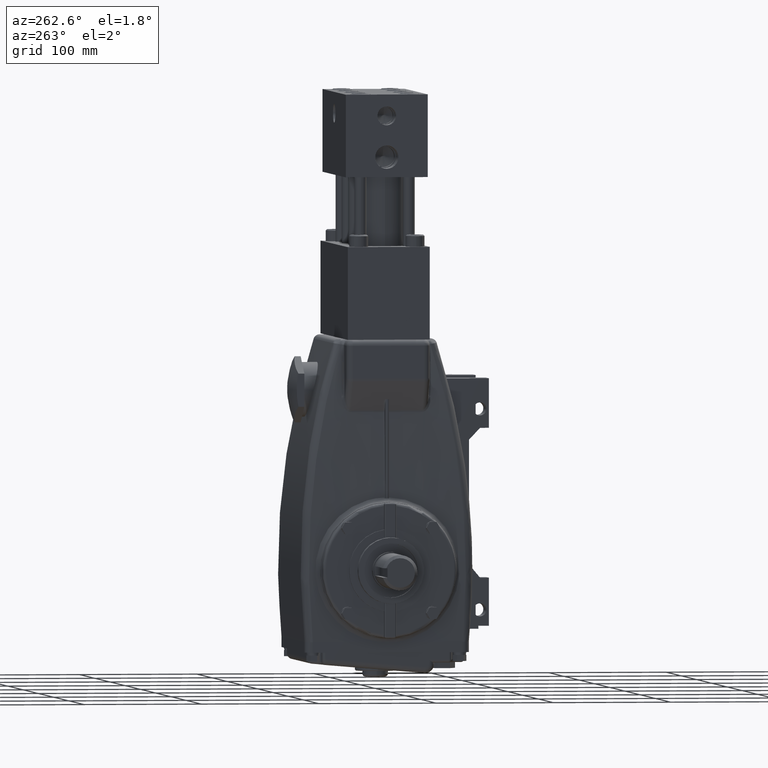
[diagram: clean part render]
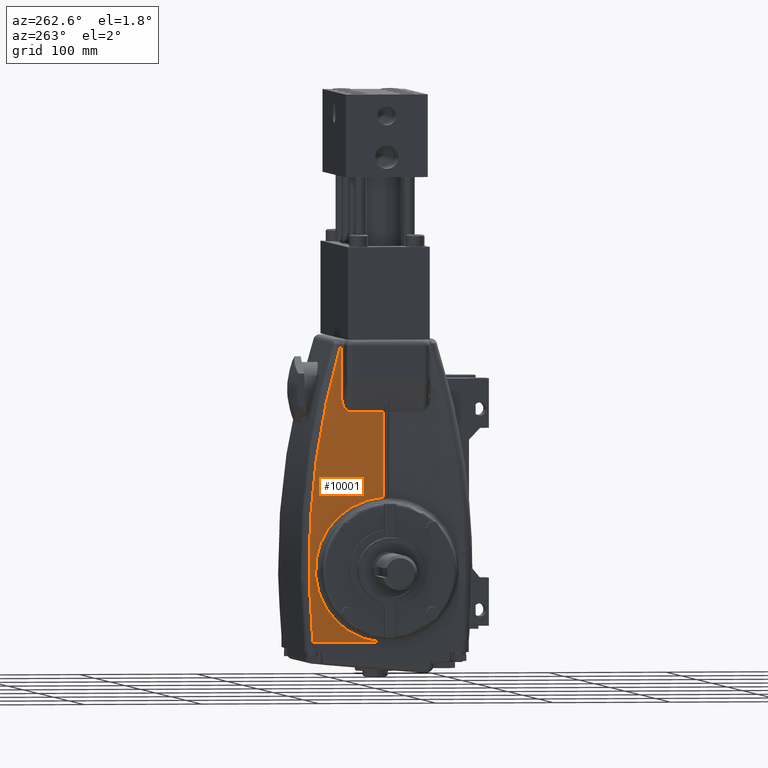
[diagram: same view with one face highlighted and labeled with its STEP entity id]
A machine part, auxiliary view. The second image highlights one B-rep face of the part: STEP entity #10001.
In plain terms, the highlighted cylindrical surface (partial cylindrical patch) has radius 2545.07 mm, axis along (0, 1, 0).
Its self-contained STEP definition (entity closure, byte-faithful):
#10001 = ADVANCED_FACE ( 'NONE', ( #15731 ), #15775, .T. ) ;
#10002 = EDGE_LOOP ( 'NONE', ( #10003, #10354, #10357, #10360, #10363, #10366, #10245, #10248, #10251 ) ) ;
#10003 = ORIENTED_EDGE ( 'NONE', *, *, #10352, .T. ) ;
#10005 = VERTEX_POINT ( 'NONE', #15787 ) ;
#10244 = VERTEX_POINT ( 'NONE', #15877 ) ;
#10245 = ORIENTED_EDGE ( 'NONE', *, *, #10246, .T. ) ;
#10246 = EDGE_CURVE ( 'NONE', #10244, #10247, #15844, .T. ) ;
#10247 = VERTEX_POINT ( 'NONE', #15907 ) ;
#10248 = ORIENTED_EDGE ( 'NONE', *, *, #10249, .T. ) ;
#10249 = EDGE_CURVE ( 'NONE', #10247, #10250, #15906, .T. ) ;
#10250 = VERTEX_POINT ( 'NONE', #15902 ) ;
#10251 = ORIENTED_EDGE ( 'NONE', *, *, #10252, .T. ) ;
#10252 = EDGE_CURVE ( 'NONE', #10250, #10005, #16021, .T. ) ;
#10352 = EDGE_CURVE ( 'NONE', #10005, #10353, #22519, .T. ) ;
#10353 = VERTEX_POINT ( 'NONE', #22514 ) ;
#10354 = ORIENTED_EDGE ( 'NONE', *, *, #10355, .T. ) ;
#10355 = EDGE_CURVE ( 'NONE', #10353, #10356, #22513, .T. ) ;
#10356 = VERTEX_POINT ( 'NONE', #22362 ) ;
#10357 = ORIENTED_EDGE ( 'NONE', *, *, #10358, .T. ) ;
#10358 = EDGE_CURVE ( 'NONE', #10356, #10359, #22359, .T. ) ;
#10359 = VERTEX_POINT ( 'NONE', #22361 ) ;
#10360 = ORIENTED_EDGE ( 'NONE', *, *, #10361, .F. ) ;
#10361 = EDGE_CURVE ( 'NONE', #10362, #10359, #22360, .T. ) ;
#10362 = VERTEX_POINT ( 'NONE', #22451 ) ;
#10363 = ORIENTED_EDGE ( 'NONE', *, *, #10364, .T. ) ;
#10364 = EDGE_CURVE ( 'NONE', #10362, #10365, #22449, .T. ) ;
#10365 = VERTEX_POINT ( 'NONE', #22450 ) ;
#10366 = ORIENTED_EDGE ( 'NONE', *, *, #10367, .T. ) ;
#10367 = EDGE_CURVE ( 'NONE', #10365, #10244, #22401, .T. ) ;
#15731 = FACE_OUTER_BOUND ( 'NONE', #10002, .T. ) ;
#15775 = CYLINDRICAL_SURFACE ( 'NONE', #15776, 100.1997440886699200 ) ;
#15776 = AXIS2_PLACEMENT_3D ( 'NONE', #15786, #15785, #15784 ) ;
#15784 = DIRECTION ( 'NONE',  ( 0.0000000000000000000, 0.0000000000000000000, 1.000000000000000000 ) ) ;
#15785 = DIRECTION ( 'NONE',  ( -0.0000000000000000000, 1.000000000000000000, -0.0000000000000000000 ) ) ;
#15786 = CARTESIAN_POINT ( 'NONE',  ( 97.00624408866993100, -2.883875515456243200, -2.399999999999999000 ) ) ;
#15787 = CARTESIAN_POINT ( 'NONE',  ( -2.859311881965418400, 1.499999999999999800, 5.776762569063620000 ) ) ;
#15843 = AXIS2_PLACEMENT_3D ( 'NONE', #15910, #15909, #15908 ) ;
#15844 = CIRCLE ( 'NONE', #15843, 100.1997440886699200 ) ;
#15877 = CARTESIAN_POINT ( 'NONE',  ( -3.050071571255026400, 0.1124999999999993100, 2.959329435330548400 ) ) ;
#15902 = CARTESIAN_POINT ( 'NONE',  ( -2.901068149329205400, 1.199999999999999700, 5.249684752582270500 ) ) ;
#15903 = DIRECTION ( 'NONE',  ( -0.0000000000000000000, 1.000000000000000000, -0.0000000000000000000 ) ) ;
#15904 = VECTOR ( 'NONE', #15903, 39.37007874015748100 ) ;
#15905 = CARTESIAN_POINT ( 'NONE',  ( -2.901068149329225000, -2.883875515456243200, 5.249684752582270500 ) ) ;
#15906 = LINE ( 'NONE', #15905, #15904 ) ;
#15907 = CARTESIAN_POINT ( 'NONE',  ( -2.901068149329225000, 0.1124999999999988600, 5.249684752582270500 ) ) ;
#15908 = DIRECTION ( 'NONE',  ( 0.0000000000000000000, 1.216656966802099500E-016, -1.000000000000000000 ) ) ;
#15909 = DIRECTION ( 'NONE',  ( -0.0000000000000000000, 1.000000000000000000, 1.215879315361935300E-016 ) ) ;
#15910 = CARTESIAN_POINT ( 'NONE',  ( 97.00624408866993100, 0.1124999999999999600, -2.399999999999999000 ) ) ;
#15966 = CARTESIAN_POINT ( 'NONE',  ( -2.887076312102566900, 1.426033687245816400, 5.430287583542172700 ) ) ;
#15967 = CARTESIAN_POINT ( 'NONE',  ( -2.888980498420548500, 1.413163146665634700, 5.405957278074187600 ) ) ;
#15968 = CARTESIAN_POINT ( 'NONE',  ( -2.889917349448204700, 1.406208030663546700, 5.393958071949475300 ) ) ;
#15987 = CARTESIAN_POINT ( 'NONE',  ( -2.876920942768291100, 1.473542060825029800, 5.558816399201777600 ) ) ;
#15988 = CARTESIAN_POINT ( 'NONE',  ( -2.881109249955064100, 1.457791016554444500, 5.506077293981412000 ) ) ;
#15989 = CARTESIAN_POINT ( 'NONE',  ( -2.883146714662563800, 1.448491403738287900, 5.480288935827699600 ) ) ;
#15990 = CARTESIAN_POINT ( 'NONE',  ( -2.886106087622788000, 1.431971710648627800, 5.442655801855199400 ) ) ;
#16002 = CARTESIAN_POINT ( 'NONE',  ( -2.901068149329205400, 1.214054273559897100, 5.249684752582275800 ) ) ;
#16003 = CARTESIAN_POINT ( 'NONE',  ( -2.901068149329205400, 1.199999999999999700, 5.249684752582270500 ) ) ;
#16008 = CARTESIAN_POINT ( 'NONE',  ( -2.899122777967387200, 1.292687141401322600, 5.275052068855854900 ) ) ;
#16009 = CARTESIAN_POINT ( 'NONE',  ( -2.899826579921504600, 1.273945378851397900, 5.265883405901991700 ) ) ;
#16012 = CARTESIAN_POINT ( 'NONE',  ( -2.897297104882007100, 1.326793647842671800, 5.298781753389487600 ) ) ;
#16013 = CARTESIAN_POINT ( 'NONE',  ( -2.898563522714478100, 1.304451546295776900, 5.282330351548273100 ) ) ;
#16014 = CARTESIAN_POINT ( 'NONE',  ( -2.900039413388507900, 1.267475114306893900, 5.263108898093414600 ) ) ;
#16015 = CARTESIAN_POINT ( 'NONE',  ( -2.900405845578858200, 1.254416266923347200, 5.258330111269648600 ) ) ;
#16021 = B_SPLINE_CURVE_WITH_KNOTS ( 'NONE', 3,
 ( #16003, #16002, #16023, #16022, #16015, #16014, #16009, #16008, #16013, #16012, #16043, #16042, #16041, #15968, #15967, #15966, #15990, #15989, #15988, #15987, #16030, #16029, #16028, #16027 ),
 .UNSPECIFIED., .F., .F.,
 ( 4, 2, 2, 2, 2, 2, 2, 2, 2, 2, 2, 4 ),
 ( 2.081668171172168500E-017, 0.001048559238685830300, 0.001572838858028724700, 0.002097118477371619000, 0.003145677716057371800, 0.004194236954743124500, 0.006291355432114687100, 0.007339914670800474500, 0.008388473909486261100, 0.01048559238685782400, 0.01258271086422938600, 0.01677694781897243200 ),
 .UNSPECIFIED. ) ;
#16022 = CARTESIAN_POINT ( 'NONE',  ( -2.900560488475496500, 1.247809450966610700, 5.256312251926240200 ) ) ;
#16023 = CARTESIAN_POINT ( 'NONE',  ( -2.900935675019130400, 1.227748052471567600, 5.251415412900642300 ) ) ;
#16027 = CARTESIAN_POINT ( 'NONE',  ( -2.859311881965418400, 1.499999999999999800, 5.776762569063620000 ) ) ;
#16028 = CARTESIAN_POINT ( 'NONE',  ( -2.863835265431385700, 1.500000000000000700, 5.721516962886185300 ) ) ;
#16029 = CARTESIAN_POINT ( 'NONE',  ( -2.868264869201754100, 1.495145394948451700, 5.666852813483151500 ) ) ;
#16030 = CARTESIAN_POINT ( 'NONE',  ( -2.874767207023723800, 1.479977659246040500, 5.585801938335467100 ) ) ;
#16041 = CARTESIAN_POINT ( 'NONE',  ( -2.892645207882323700, 1.383710629156810000, 5.358942002736998100 ) ) ;
#16042 = CARTESIAN_POINT ( 'NONE',  ( -2.894331098685592800, 1.366811375216337600, 5.337194183298283400 ) ) ;
#16043 = CARTESIAN_POINT ( 'NONE',  ( -2.896586727287275000, 1.337386093505383000, 5.307996217115952900 ) ) ;
#22356 = DIRECTION ( 'NONE',  ( -0.0000000000000000000, 1.000000000000000000, 4.948103592943783900E-017 ) ) ;
#22357 = VECTOR ( 'NONE', #22356, 39.37007874015748100 ) ;
#22358 = CARTESIAN_POINT ( 'NONE',  ( -3.193499999999999800, 2.759999999999999300, -2.399999999999999500 ) ) ;
#22359 = B_SPLINE_CURVE_WITH_KNOTS ( 'NONE', 3,
 ( #22465, #22464, #22463, #22462, #22461, #22460, #22459, #22458, #22457, #22456, #22455, #22454, #22453, #22452 ),
 .UNSPECIFIED., .F., .F.,
 ( 4, 2, 2, 2, 2, 2, 4 ),
 ( 0.004797589503056155400, 0.06834200663265445300, 0.1001142151974536000, 0.1160003194798531800, 0.1318864237622527400, 0.1954308408918510900, 0.2589752580214494900 ),
 .UNSPECIFIED. ) ;
#22360 = LINE ( 'NONE', #22358, #22357 ) ;
#22361 = CARTESIAN_POINT ( 'NONE',  ( -3.193499999999999800, 2.508788990083121700, -2.399999999999999500 ) ) ;
#22362 = CARTESIAN_POINT ( 'NONE',  ( -2.704046829939863900, 1.502384815206442700, 7.491744050527267400 ) ) ;
#22363 = DIRECTION ( 'NONE',  ( -0.0000000000000000000, 1.000000000000000000, -0.0000000000000000000 ) ) ;
#22364 = VECTOR ( 'NONE', #22363, 39.37007874015748100 ) ;
#22382 = CARTESIAN_POINT ( 'NONE',  ( -3.078205938919272600, 0.1084565901556461800, 2.405369716259299700 ) ) ;
#22383 = CARTESIAN_POINT ( 'NONE',  ( -3.078530095846196100, 0.2588634182286536600, 2.398618296562286600 ) ) ;
#22384 = CARTESIAN_POINT ( 'NONE',  ( -3.079521107531616700, 0.4069141820352323300, 2.378021905481713100 ) ) ;
#22385 = CARTESIAN_POINT ( 'NONE',  ( -3.081953115177175700, 0.6255161514456972800, 2.326710179356362000 ) ) ;
#22386 = CARTESIAN_POINT ( 'NONE',  ( -3.082921909360072800, 0.6978007400278927200, 2.306181617380318000 ) ) ;
#22387 = CARTESIAN_POINT ( 'NONE',  ( -3.084610179603933100, 0.8053262802969154400, 2.270091254206254100 ) ) ;
#22388 = CARTESIAN_POINT ( 'NONE',  ( -3.085211724666976400, 0.8409743664661735200, 2.257185353923049300 ) ) ;
#22389 = CARTESIAN_POINT ( 'NONE',  ( -3.086478566416198400, 0.9112242799567213900, 2.229878372698119700 ) ) ;
#22390 = CARTESIAN_POINT ( 'NONE',  ( -3.087145268791223500, 0.9459185503087023100, 2.215447301919554900 ) ) ;
#22391 = CARTESIAN_POINT ( 'NONE',  ( -3.090637404584585500, 1.117269816220222800, 2.139464018919025700 ) ) ;
#22392 = CARTESIAN_POINT ( 'NONE',  ( -3.093936311282044400, 1.247621122521171300, 2.066526620667946500 ) ) ;
#22393 = CARTESIAN_POINT ( 'NONE',  ( -3.098593737780741500, 1.402122762010994200, 1.960116164739640300 ) ) ;
#22394 = CARTESIAN_POINT ( 'NONE',  ( -3.099552054188765600, 1.432597797616533200, 1.938065962336821300 ) ) ;
#22395 = CARTESIAN_POINT ( 'NONE',  ( -3.050071571255026400, 0.1124999999999993100, 2.959329435330548400 ) ) ;
#22396 = CARTESIAN_POINT ( 'NONE',  ( -3.059961165127059100, 0.1124999999999996600, 2.774695081695485400 ) ) ;
#22397 = CARTESIAN_POINT ( 'NONE',  ( -3.069339456070422600, 0.1110588283727673400, 2.590037517490932500 ) ) ;
#22398 = CARTESIAN_POINT ( 'NONE',  ( -3.078205938919272600, 0.1084565901556461800, 2.405369716259299700 ) ) ;
#22401 = B_SPLINE_CURVE_WITH_KNOTS ( 'NONE', 3,
 ( #22398, #22397, #22396, #22395 ),
 .UNSPECIFIED., .F., .F.,
 ( 4, 4 ),
 ( 0.0000000000000000000, 0.01408914358407357600 ),
 .UNSPECIFIED. ) ;
#22444 = CARTESIAN_POINT ( 'NONE',  ( -3.193408615133262800, 0.8506643079342411900, -2.261678865616281200 ) ) ;
#22445 = CARTESIAN_POINT ( 'NONE',  ( -3.193438569779346400, 0.7801560112038478100, -2.286906464511732700 ) ) ;
#22446 = CARTESIAN_POINT ( 'NONE',  ( -3.193498362453732800, 0.5658239437000971400, -2.352603475947344900 ) ) ;
#22447 = CARTESIAN_POINT ( 'NONE',  ( -3.193499999999992200, 0.4192179219389072800, -2.383175770262927300 ) ) ;
#22448 = CARTESIAN_POINT ( 'NONE',  ( -3.193499999999999300, 0.2687470930075394600, -2.399999999999999500 ) ) ;
#22449 = B_SPLINE_CURVE_WITH_KNOTS ( 'NONE', 3,
 ( #22448, #22447, #22446, #22445, #22444, #22510, #22509, #22508, #22507, #22506, #22505, #22504, #22503, #22502, #22501, #22500, #22499, #22498, #22497, #22496, #22495, #22494, #22493, #22492, #22491, #22490, #22489, #22488, #22487, #22486, #22485, #22484, #22483, #22482, #22481, #22480, #22479, #22478, #22477, #22476, #22475, #22474, #22473, #22472, #22471, #22470, #22469, #22468, #22467, #22394, #22393, #22392, #22391, #22390, #22389, #22388, #22387, #22386, #22385, #22384, #22383, #22382 ),
 .UNSPECIFIED., .F., .F.,
 ( 4, 2, 2, 2, 2, 2, 2, 2, 2, 2, 2, 2, 2, 2, 2, 2, 2, 2, 2, 2, 2, 2, 2, 2, 2, 2, 2, 2, 2, 2, 4 ),
 ( 0.2012710640508607900, 0.2128196111992947100, 0.2185938847735116900, 0.2214810215606201600, 0.2243681583477286600, 0.2359167054961626200, 0.2416909790703796200, 0.2445781158574881200, 0.2474652526445965900, 0.2590137997930305200, 0.2619009365801390200, 0.2647880733672474700, 0.2705623469414644200, 0.2821108940898983100, 0.2849980308770068100, 0.2878851676641153200, 0.2936594412383322100, 0.3052079883867661600, 0.3167565355352000600, 0.3225308091094170000, 0.3254179458965254500, 0.3283050826836339000, 0.3398536298320677900, 0.3456279034062848000, 0.3485150401933932400, 0.3514021769805016900, 0.3629507241289355900, 0.3658378609160440900, 0.3687249977031525900, 0.3744992712773694800, 0.3860478184258034400 ),
 .UNSPECIFIED. ) ;
#22450 = CARTESIAN_POINT ( 'NONE',  ( -3.078205938919272600, 0.1084565901556461800, 2.405369716259299700 ) ) ;
#22451 = CARTESIAN_POINT ( 'NONE',  ( -3.193499999999999300, 0.2687470930075394600, -2.399999999999999500 ) ) ;
#22452 = CARTESIAN_POINT ( 'NONE',  ( -3.193499999999999800, 2.508788990083121700, -2.399999999999999500 ) ) ;
#22453 = CARTESIAN_POINT ( 'NONE',  ( -3.193499999999989100, 2.591234488211412700, -1.565514623699902000 ) ) ;
#22454 = CARTESIAN_POINT ( 'NONE',  ( -3.183076979656302100, 2.631422527200258700, -0.7314054260955227300 ) ) ;
#22455 = CARTESIAN_POINT ( 'NONE',  ( -3.141421543133097000, 2.628735899148295200, 0.9360654197423861100 ) ) ;
#22456 = CARTESIAN_POINT ( 'NONE',  ( -3.110189095241195500, 2.585860547100321300, 1.769427065343672800 ) ) ;
#22457 = CARTESIAN_POINT ( 'NONE',  ( -3.058141244677879700, 2.479677258376740600, 2.810660063720752200 ) ) ;
#22458 = CARTESIAN_POINT ( 'NONE',  ( -3.047099620727769000, 2.455841282626190800, 3.018504000061164500 ) ) ;
#22459 = CARTESIAN_POINT ( 'NONE',  ( -3.023799225621606200, 2.403067409365320800, 3.432855867455534500 ) ) ;
#22460 = CARTESIAN_POINT ( 'NONE',  ( -3.011536188272426100, 2.374120856434408300, 3.639449636377141600 ) ) ;
#22461 = CARTESIAN_POINT ( 'NONE',  ( -2.972938168001374700, 2.279650316702052300, 4.257496731557621300 ) ) ;
#22462 = CARTESIAN_POINT ( 'NONE',  ( -2.944794368150825300, 2.206500290752786900, 4.667216866577972700 ) ) ;
#22463 = CARTESIAN_POINT ( 'NONE',  ( -2.853360080271936100, 1.956747275109800100, 5.889504222922311300 ) ) ;
#22464 = CARTESIAN_POINT ( 'NONE',  ( -2.783066411982899200, 1.749918842867077100, 6.695214593888327800 ) ) ;
#22465 = CARTESIAN_POINT ( 'NONE',  ( -2.704046829939863900, 1.502384815206442700, 7.491744050527267400 ) ) ;
#22467 = CARTESIAN_POINT ( 'NONE',  ( -3.101520433277132700, 1.492682553590670900, 1.892402603154246200 ) ) ;
#22468 = CARTESIAN_POINT ( 'NONE',  ( -3.102532703847299200, 1.522350075571332000, 1.868736598710904800 ) ) ;
#22469 = CARTESIAN_POINT ( 'NONE',  ( -3.105613244486878300, 1.609167799634359400, 1.796079977034388000 ) ) ;
#22470 = CARTESIAN_POINT ( 'NONE',  ( -3.107732440664884100, 1.664381414727380800, 1.745267856960393400 ) ) ;
#22471 = CARTESIAN_POINT ( 'NONE',  ( -3.114246393333108400, 1.822245541829389200, 1.585901131101937100 ) ) ;
#22472 = CARTESIAN_POINT ( 'NONE',  ( -3.118796415940725100, 1.917186232645571800, 1.470475785975479600 ) ) ;
#22473 = CARTESIAN_POINT ( 'NONE',  ( -3.124633292299019000, 2.022680889595323400, 1.314442833905643300 ) ) ;
#22474 = CARTESIAN_POINT ( 'NONE',  ( -3.125811211188172000, 2.043164462389778400, 1.282561568421765100 ) ) ;
#22475 = CARTESIAN_POINT ( 'NONE',  ( -3.128164094763990400, 2.082514060381567100, 1.218018246568125500 ) ) ;
#22476 = CARTESIAN_POINT ( 'NONE',  ( -3.129337404081564700, 2.101357309725238500, 1.185403973172957100 ) ) ;
#22477 = CARTESIAN_POINT ( 'NONE',  ( -3.132844270732450600, 2.155438608693346600, 1.086552224225362500 ) ) ;
#22478 = CARTESIAN_POINT ( 'NONE',  ( -3.135164702513356400, 2.188233472266324600, 1.019307985589218900 ) ) ;
#22479 = CARTESIAN_POINT ( 'NONE',  ( -3.142047070020099300, 2.277008607589339700, 0.8136146038688433200 ) ) ;
#22480 = CARTESIAN_POINT ( 'NONE',  ( -3.146531364178350100, 2.323479563794340400, 0.6711799875978261600 ) ) ;
#22481 = CARTESIAN_POINT ( 'NONE',  ( -3.155159048201970200, 2.389775384575773700, 0.3755898612544032500 ) ) ;
#22482 = CARTESIAN_POINT ( 'NONE',  ( -3.159167863851577900, 2.408581724085689500, 0.2270265103959940000 ) ) ;
#22483 = CARTESIAN_POINT ( 'NONE',  ( -3.164707404649409000, 2.416149053611484500, 0.003074796055310366000 ) ) ;
#22484 = CARTESIAN_POINT ( 'NONE',  ( -3.166475013784516800, 2.415207866409389200, -0.07176145630009085600 ) ) ;
#22485 = CARTESIAN_POINT ( 'NONE',  ( -3.169006322761096100, 2.408502998497954000, -0.1842995786438345900 ) ) ;
#22486 = CARTESIAN_POINT ( 'NONE',  ( -3.169830076248578300, 2.405384434780441200, -0.2218596523524999600 ) ) ;
#22487 = CARTESIAN_POINT ( 'NONE',  ( -3.171437271344347100, 2.397345605804510600, -0.2970763683025486900 ) ) ;
#22488 = CARTESIAN_POINT ( 'NONE',  ( -3.172218516809790100, 2.392431186694973500, -0.3346352273510033200 ) ) ;
#22489 = CARTESIAN_POINT ( 'NONE',  ( -3.175986556262090100, 2.363626009163432200, -0.5207560703732143600 ) ) ;
#22490 = CARTESIAN_POINT ( 'NONE',  ( -3.178588975194623200, 2.327010825305558600, -0.6656876048524972300 ) ) ;
#22491 = CARTESIAN_POINT ( 'NONE',  ( -3.181953621751429500, 2.252163681990853000, -0.8772623360147076000 ) ) ;
#22492 = CARTESIAN_POINT ( 'NONE',  ( -3.182985147102874700, 2.223872427451928600, -0.9468105344389851100 ) ) ;
#22493 = CARTESIAN_POINT ( 'NONE',  ( -3.184406063047858100, 2.176276983621580300, -1.049625099255056600 ) ) ;
#22494 = CARTESIAN_POINT ( 'NONE',  ( -3.184859065717991400, 2.159524040308904900, -1.083685664089148300 ) ) ;
#22495 = CARTESIAN_POINT ( 'NONE',  ( -3.185715737062711800, 2.124639012052347300, -1.150591738901187000 ) ) ;
#22496 = CARTESIAN_POINT ( 'NONE',  ( -3.186120649293865200, 2.106469770781032900, -1.183523607338938400 ) ) ;
#22497 = CARTESIAN_POINT ( 'NONE',  ( -3.188036277691251200, 2.012050661145099500, -1.345620595773107800 ) ) ;
#22498 = CARTESIAN_POINT ( 'NONE',  ( -3.189221873661999500, 1.925174042244431000, -1.467164615676908300 ) ) ;
#22499 = CARTESIAN_POINT ( 'NONE',  ( -3.190381356569694100, 1.802426500793100200, -1.608944416895762700 ) ) ;
#22500 = CARTESIAN_POINT ( 'NONE',  ( -3.190597032625825500, 1.777163663156451600, -1.636788747947192800 ) ) ;
#22501 = CARTESIAN_POINT ( 'NONE',  ( -3.190998395985042100, 1.725188394571019600, -1.691437671974647600 ) ) ;
#22502 = CARTESIAN_POINT ( 'NONE',  ( -3.191184512781434400, 1.698401666810804800, -1.718311051224402900 ) ) ;
#22503 = CARTESIAN_POINT ( 'NONE',  ( -3.191697364861512100, 1.616499526374255600, -1.796696732009077000 ) ) ;
#22504 = CARTESIAN_POINT ( 'NONE',  ( -3.191979350546875900, 1.559841873133970500, -1.846018960946680600 ) ) ;
#22505 = CARTESIAN_POINT ( 'NONE',  ( -3.192685532051585900, 1.383883485709605800, -1.985442375227459000 ) ) ;
#22506 = CARTESIAN_POINT ( 'NONE',  ( -3.192971424991298600, 1.258648262418154800, -2.067072993735324300 ) ) ;
#22507 = CARTESIAN_POINT ( 'NONE',  ( -3.193201276837246200, 1.092009526476934700, -2.154702147297155700 ) ) ;
#22508 = CARTESIAN_POINT ( 'NONE',  ( -3.193240799271334300, 1.058121289078791700, -2.171525603608403600 ) ) ;
#22509 = CARTESIAN_POINT ( 'NONE',  ( -3.193308768625319000, 0.9895330302185858500, -2.203583206747153200 ) ) ;
#22510 = CARTESIAN_POINT ( 'NONE',  ( -3.193337082023118200, 0.9549950961906599200, -2.218744741731252500 ) ) ;
#22512 = CARTESIAN_POINT ( 'NONE',  ( -2.704046829939895900, -2.883875515456243200, 7.491744050527263900 ) ) ;
#22513 = LINE ( 'NONE', #22512, #22364 ) ;
#22514 = CARTESIAN_POINT ( 'NONE',  ( -2.704046829939878100, 1.499999999999999800, 7.491744050527263900 ) ) ;
#22515 = DIRECTION ( 'NONE',  ( 0.0000000000000000000, 0.0000000000000000000, 1.000000000000000000 ) ) ;
#22516 = DIRECTION ( 'NONE',  ( 0.0000000000000000000, 1.000000000000000000, 0.0000000000000000000 ) ) ;
#22517 = CARTESIAN_POINT ( 'NONE',  ( 97.00624408866993100, 1.499999999999999800, -2.399999999999999000 ) ) ;
#22518 = AXIS2_PLACEMENT_3D ( 'NONE', #22517, #22516, #22515 ) ;
#22519 = CIRCLE ( 'NONE', #22518, 100.1997440886699200 ) ;